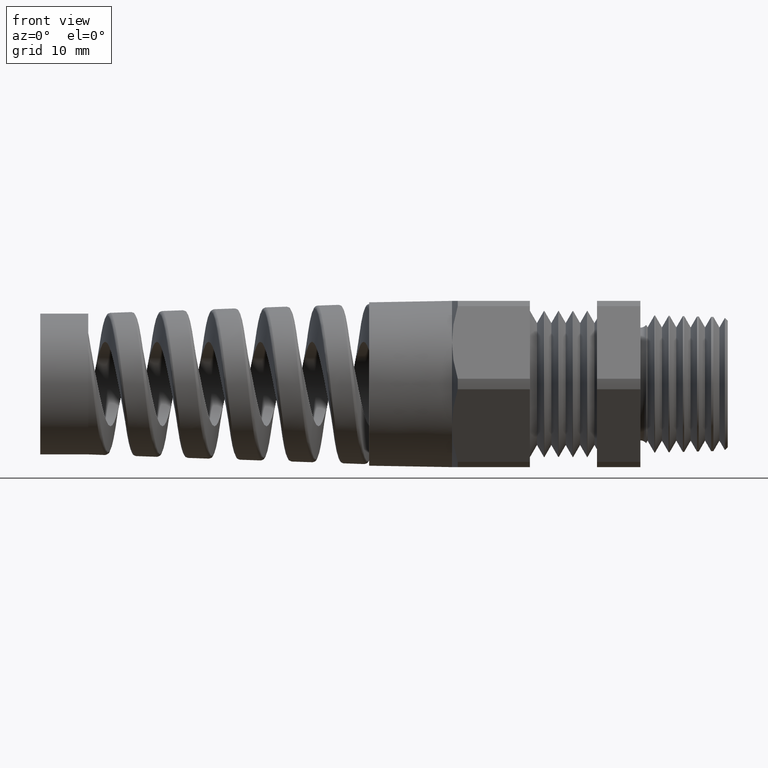
[diagram: clean part render]
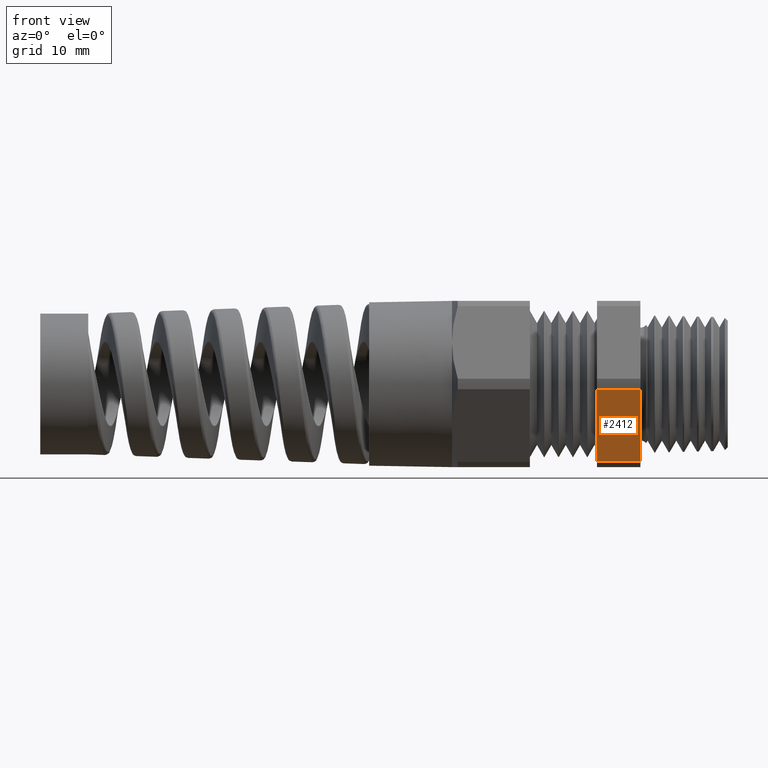
[diagram: same view with one face highlighted and labeled with its STEP entity id]
A machine part, front view. The second image highlights one B-rep face of the part: STEP entity #2412.
In plain terms, the highlighted planar face has unit normal (0, -0.866, -0.5).
Its self-contained STEP definition (entity closure, byte-faithful):
#431 = DIRECTION ( 'NONE',  ( 0.0000000000000000000, 0.5000000000000002200, -0.8660254037844384900 ) ) ;
#432 = VECTOR ( 'NONE', #431, 39.37007874015748900 ) ;
#433 = CARTESIAN_POINT ( 'NONE',  ( -0.1542288557213930500, -0.1905524941164093700, -0.2599533986814094900 ) ) ;
#434 = LINE ( 'NONE', #433, #432 ) ;
#523 = DIRECTION ( 'NONE',  ( 1.000000000000000000, 0.0000000000000000000, 0.0000000000000000000 ) ) ;
#524 = VECTOR ( 'NONE', #523, 39.37007874015748100 ) ;
#525 = CARTESIAN_POINT ( 'NONE',  ( -1.612607445236302800, -0.1810813248601903200, -0.2763579450402652300 ) ) ;
#526 = LINE ( 'NONE', #525, #524 ) ;
#567 = CARTESIAN_POINT ( 'NONE',  ( -0.1542288557213930500, -0.1810813248601903200, -0.2763579450402652300 ) ) ;
#1276 = VERTEX_POINT ( 'NONE', #4297 ) ;
#1284 = VERTEX_POINT ( 'NONE', #4348 ) ;
#1287 = EDGE_CURVE ( 'NONE', #1276, #1284, #4335, .T. ) ;
#1853 = VERTEX_POINT ( 'NONE', #7329 ) ;
#1975 = EDGE_CURVE ( 'NONE', #1853, #1276, #7522, .T. ) ;
#2024 = ORIENTED_EDGE ( 'NONE', *, *, #1975, .F. ) ;
#2026 = ORIENTED_EDGE ( 'NONE', *, *, #9490, .T. ) ;
#2027 = ORIENTED_EDGE ( 'NONE', *, *, #3212, .T. ) ;
#2030 = ORIENTED_EDGE ( 'NONE', *, *, #1287, .F. ) ;
#2389 = EDGE_LOOP ( 'NONE', ( #2027, #2026, #2030, #2024 ) ) ;
#2412 = ADVANCED_FACE ( 'NONE', ( #9633 ), #9628, .T. ) ;
#3212 = EDGE_CURVE ( 'NONE', #1853, #9508, #434, .T. ) ;
#4297 = CARTESIAN_POINT ( 'NONE',  ( 0.0000000000000000000, -0.3298736633726285800, -0.01864205495973507800 ) ) ;
#4332 = DIRECTION ( 'NONE',  ( 0.0000000000000000000, 0.5000000000000003300, -0.8660254037844383700 ) ) ;
#4333 = VECTOR ( 'NONE', #4332, 39.37007874015748100 ) ;
#4334 = CARTESIAN_POINT ( 'NONE',  ( 0.0000000000000000000, -0.3298736633726285200, -0.01864205495973509500 ) ) ;
#4335 = LINE ( 'NONE', #4334, #4333 ) ;
#4348 = CARTESIAN_POINT ( 'NONE',  ( 0.0000000000000000000, -0.1810813248601903200, -0.2763579450402652300 ) ) ;
#7329 = CARTESIAN_POINT ( 'NONE',  ( -0.1542288557213930500, -0.3298736633726286300, -0.01864205495973509200 ) ) ;
#7519 = DIRECTION ( 'NONE',  ( 1.000000000000000000, 0.0000000000000000000, 0.0000000000000000000 ) ) ;
#7520 = VECTOR ( 'NONE', #7519, 39.37007874015748100 ) ;
#7521 = CARTESIAN_POINT ( 'NONE',  ( -1.612607445236302800, -0.3298736633726285200, -0.01864205495973509500 ) ) ;
#7522 = LINE ( 'NONE', #7521, #7520 ) ;
#9490 = EDGE_CURVE ( 'NONE', #9508, #1284, #526, .T. ) ;
#9508 = VERTEX_POINT ( 'NONE', #567 ) ;
#9624 = DIRECTION ( 'NONE',  ( 0.0000000000000000000, 0.5000000000000002200, -0.8660254037844384900 ) ) ;
#9625 = DIRECTION ( 'NONE',  ( 0.0000000000000000000, -0.8660254037844386000, -0.5000000000000003300 ) ) ;
#9626 = CARTESIAN_POINT ( 'NONE',  ( -1.612607445236302800, -0.3298736633726285200, -0.01864205495973509500 ) ) ;
#9627 = AXIS2_PLACEMENT_3D ( 'NONE', #9626, #9625, #9624 ) ;
#9628 = PLANE ( 'NONE',  #9627 ) ;
#9633 = FACE_OUTER_BOUND ( 'NONE', #2389, .T. ) ;